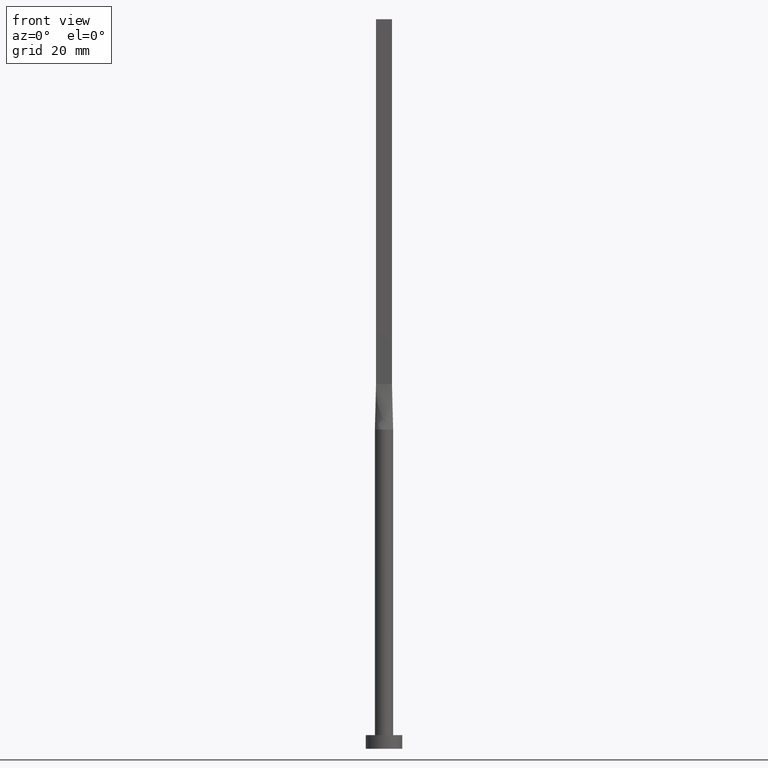
[diagram: clean part render]
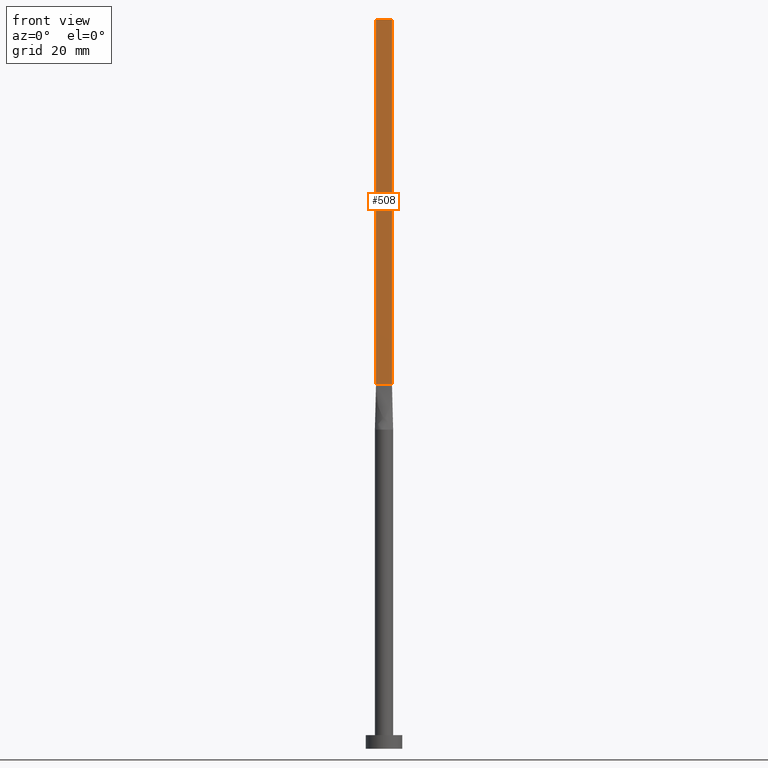
[diagram: same view with one face highlighted and labeled with its STEP entity id]
A machine part, front view. The second image highlights one B-rep face of the part: STEP entity #508.
In plain terms, the highlighted planar face has unit normal (0, 1, 0).
Its self-contained STEP definition (entity closure, byte-faithful):
#8 = VECTOR ( 'NONE', #379, 1000.000000000000000 ) ;
#14 = PLANE ( 'NONE',  #67 ) ;
#20 = DIRECTION ( 'NONE',  ( 0.000000000000000000, 1.000000000000000000, 0.000000000000000000 ) ) ;
#38 = EDGE_LOOP ( 'NONE', ( #343, #446, #391, #487 ) ) ;
#40 = EDGE_CURVE ( 'NONE', #183, #131, #268, .T. ) ;
#67 = AXIS2_PLACEMENT_3D ( 'NONE', #415, #20, #115 ) ;
#79 = EDGE_CURVE ( 'NONE', #525, #95, #281, .T. ) ;
#95 = VERTEX_POINT ( 'NONE', #507 ) ;
#115 = DIRECTION ( 'NONE',  ( 0.000000000000000000, -0.000000000000000000, 1.000000000000000000 ) ) ;
#131 = VERTEX_POINT ( 'NONE', #274 ) ;
#136 = CARTESIAN_POINT ( 'NONE',  ( -1.750000000000000000, -0.3999999999999996891, 160.0000000000000000 ) ) ;
#137 = LINE ( 'NONE', #393, #569 ) ;
#183 = VERTEX_POINT ( 'NONE', #344 ) ;
#193 = CARTESIAN_POINT ( 'NONE',  ( 1.750000000000000000, -0.3999999999999996891, 160.0000000000000000 ) ) ;
#202 = CARTESIAN_POINT ( 'NONE',  ( 1.750000000000000000, -0.3999999999999996891, 160.0000000000000000 ) ) ;
#223 = EDGE_CURVE ( 'NONE', #183, #525, #467, .T. ) ;
#268 = LINE ( 'NONE', #136, #8 ) ;
#274 = CARTESIAN_POINT ( 'NONE',  ( -1.750000000000000000, -0.3999999999999996891, 80.00000000000000000 ) ) ;
#281 = LINE ( 'NONE', #193, #529 ) ;
#299 = DIRECTION ( 'NONE',  ( 1.000000000000000000, 0.000000000000000000, 0.000000000000000000 ) ) ;
#343 = ORIENTED_EDGE ( 'NONE', *, *, #378, .T. ) ;
#344 = CARTESIAN_POINT ( 'NONE',  ( -1.750000000000000000, -0.3999999999999996891, 160.0000000000000000 ) ) ;
#351 = DIRECTION ( 'NONE',  ( 1.000000000000000000, 0.000000000000000000, 0.000000000000000000 ) ) ;
#369 = DIRECTION ( 'NONE',  ( -0.000000000000000000, -0.000000000000000000, -1.000000000000000000 ) ) ;
#378 = EDGE_CURVE ( 'NONE', #131, #95, #137, .T. ) ;
#379 = DIRECTION ( 'NONE',  ( -0.000000000000000000, -0.000000000000000000, -1.000000000000000000 ) ) ;
#391 = ORIENTED_EDGE ( 'NONE', *, *, #223, .F. ) ;
#393 = CARTESIAN_POINT ( 'NONE',  ( -1.750000000000000000, -0.3999999999999996891, 80.00000000000000000 ) ) ;
#415 = CARTESIAN_POINT ( 'NONE',  ( -1.750000000000000000, -0.3999999999999996891, 160.0000000000000000 ) ) ;
#417 = FACE_OUTER_BOUND ( 'NONE', #38, .T. ) ;
#446 = ORIENTED_EDGE ( 'NONE', *, *, #79, .F. ) ;
#467 = LINE ( 'NONE', #478, #545 ) ;
#478 = CARTESIAN_POINT ( 'NONE',  ( -1.750000000000000000, -0.3999999999999996891, 160.0000000000000000 ) ) ;
#487 = ORIENTED_EDGE ( 'NONE', *, *, #40, .T. ) ;
#507 = CARTESIAN_POINT ( 'NONE',  ( 1.750000000000000000, -0.3999999999999996891, 80.00000000000000000 ) ) ;
#508 = ADVANCED_FACE ( 'NONE', ( #417 ), #14, .F. ) ;
#525 = VERTEX_POINT ( 'NONE', #202 ) ;
#529 = VECTOR ( 'NONE', #369, 1000.000000000000000 ) ;
#545 = VECTOR ( 'NONE', #299, 1000.000000000000000 ) ;
#569 = VECTOR ( 'NONE', #351, 1000.000000000000000 ) ;